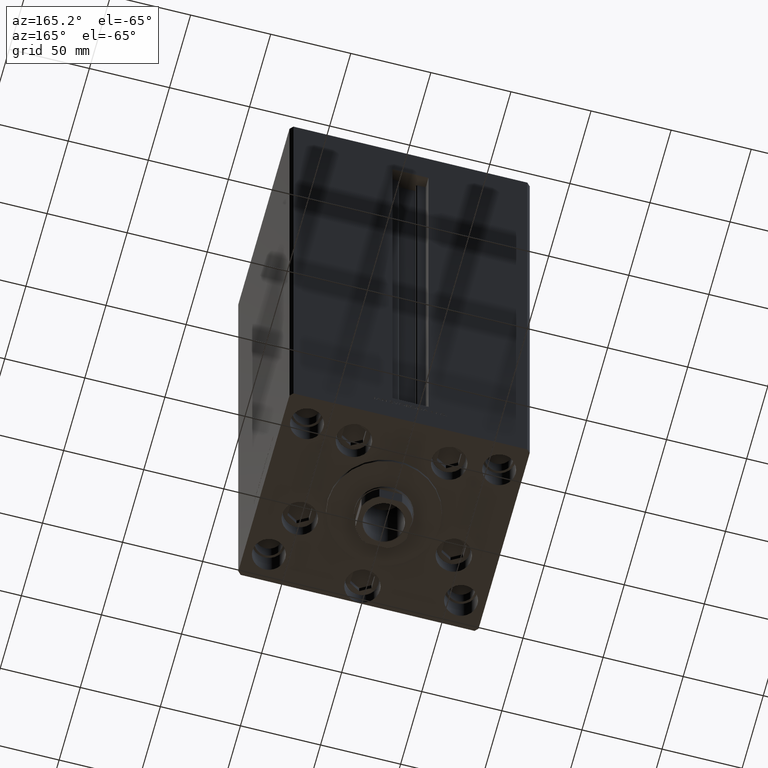
[diagram: clean part render]
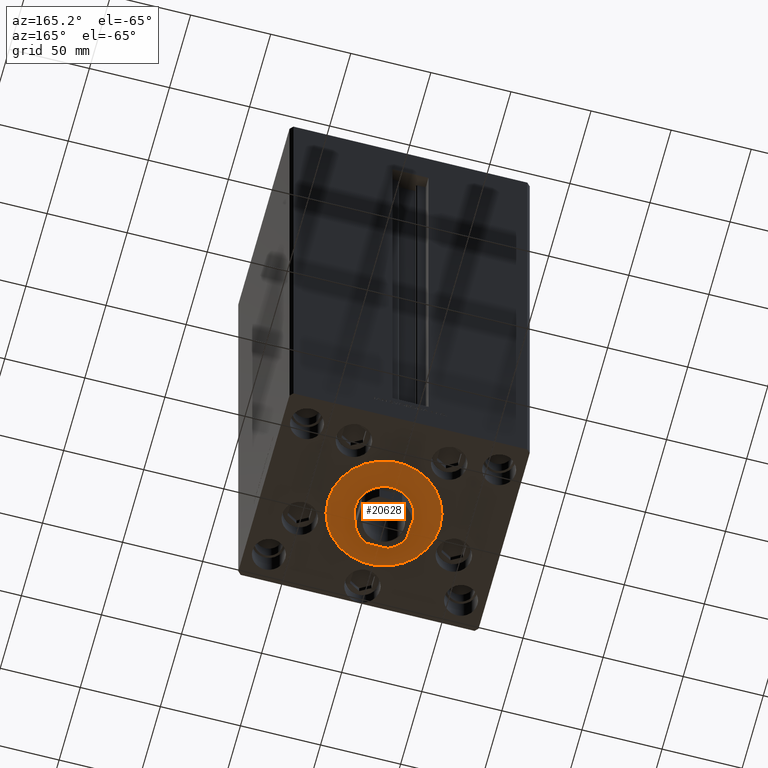
[diagram: same view with one face highlighted and labeled with its STEP entity id]
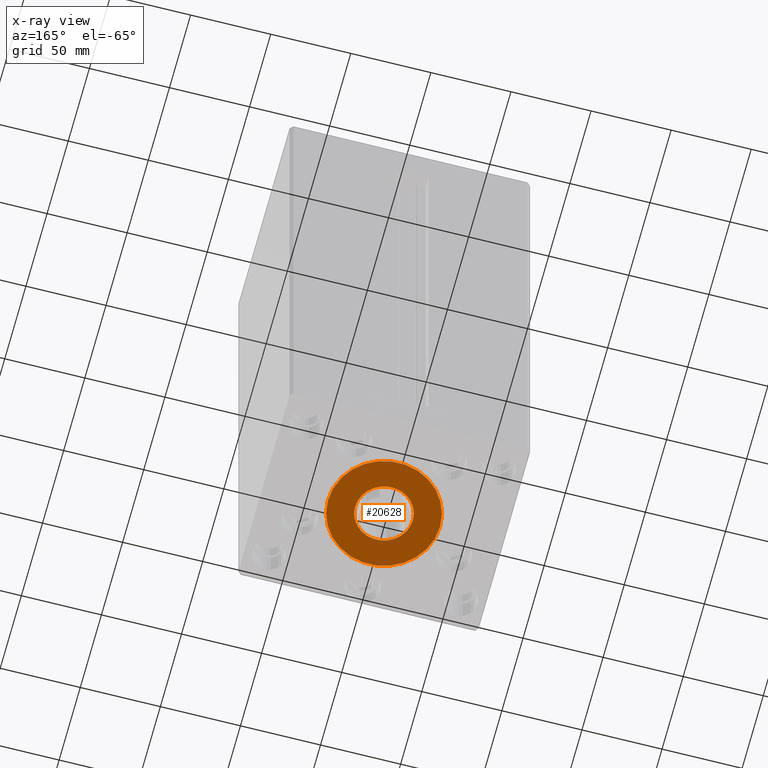
[diagram: x-ray of the same camera — body ghosted, the highlighted face saturated]
A machine part, auxiliary view. The second image highlights one B-rep face of the part: STEP entity #20628.
The next image is the same camera in x-ray: the body ghosted, the highlighted face saturated — about 0% of this face is hidden behind the body in this view.
In plain terms, the highlighted planar face has unit normal (0, 0, -1).
Its self-contained STEP definition (entity closure, byte-faithful):
#892 = DIRECTION ( 'NONE',  ( 1.000000000000000000, 0.000000000000000000, 0.000000000000000000 ) ) ;
#1050 = FACE_OUTER_BOUND ( 'NONE', #23318, .T. ) ;
#3868 = DIRECTION ( 'NONE',  ( 0.000000000000000000, 0.000000000000000000, 1.000000000000000000 ) ) ;
#4457 = DIRECTION ( 'NONE',  ( 0.000000000000000000, 0.000000000000000000, 1.000000000000000000 ) ) ;
#5947 = DIRECTION ( 'NONE',  ( 0.000000000000000000, 0.000000000000000000, 1.000000000000000000 ) ) ;
#6570 = VERTEX_POINT ( 'NONE', #34534 ) ;
#8428 = CARTESIAN_POINT ( 'NONE',  ( 0.000000000000000000, -6.938893903907228378E-15, 2.000000000000000000 ) ) ;
#8913 = DIRECTION ( 'NONE',  ( 1.000000000000000000, 0.000000000000000000, 0.000000000000000000 ) ) ;
#8971 = DIRECTION ( 'NONE',  ( 0.000000000000000000, 0.000000000000000000, 1.000000000000000000 ) ) ;
#9105 = EDGE_CURVE ( 'NONE', #6570, #33917, #36404, .T. ) ;
#10519 = EDGE_CURVE ( 'NONE', #33917, #6570, #30892, .T. ) ;
#10692 = ORIENTED_EDGE ( 'NONE', *, *, #15259, .F. ) ;
#12687 = FACE_BOUND ( 'NONE', #16445, .T. ) ;
#14269 = AXIS2_PLACEMENT_3D ( 'NONE', #34815, #3868, #892 ) ;
#14446 = CARTESIAN_POINT ( 'NONE',  ( 35.00000000000000711, -2.652630106891490698E-15, 2.000000000000000000 ) ) ;
#15259 = EDGE_CURVE ( 'NONE', #38137, #31589, #24584, .T. ) ;
#15803 = EDGE_CURVE ( 'NONE', #31589, #38137, #42736, .T. ) ;
#16445 = EDGE_LOOP ( 'NONE', ( #23503, #10692 ) ) ;
#19556 = DIRECTION ( 'NONE',  ( 0.000000000000000000, 0.000000000000000000, 1.000000000000000000 ) ) ;
#20628 = ADVANCED_FACE ( 'NONE', ( #12687, #1050 ), #27790, .T. ) ;
#21397 = AXIS2_PLACEMENT_3D ( 'NONE', #23762, #4457, #8913 ) ;
#23276 = DIRECTION ( 'NONE',  ( 1.000000000000000000, 0.000000000000000000, 0.000000000000000000 ) ) ;
#23318 = EDGE_LOOP ( 'NONE', ( #32825, #31174 ) ) ;
#23503 = ORIENTED_EDGE ( 'NONE', *, *, #15803, .F. ) ;
#23762 = CARTESIAN_POINT ( 'NONE',  ( 0.000000000000000000, -6.938893903907228378E-15, 2.000000000000000000 ) ) ;
#24584 = CIRCLE ( 'NONE', #38818, 18.00000000000000000 ) ;
#24694 = CARTESIAN_POINT ( 'NONE',  ( 18.00000000000000000, -6.938893903907228378E-15, 2.000000000000000000 ) ) ;
#25014 = DIRECTION ( 'NONE',  ( 1.000000000000000000, 0.000000000000000000, 0.000000000000000000 ) ) ;
#27790 = PLANE ( 'NONE',  #35817 ) ;
#30892 = CIRCLE ( 'NONE', #14269, 35.00000000000000711 ) ;
#31174 = ORIENTED_EDGE ( 'NONE', *, *, #10519, .T. ) ;
#31589 = VERTEX_POINT ( 'NONE', #24694 ) ;
#32444 = AXIS2_PLACEMENT_3D ( 'NONE', #8428, #19556, #23276 ) ;
#32825 = ORIENTED_EDGE ( 'NONE', *, *, #9105, .T. ) ;
#33917 = VERTEX_POINT ( 'NONE', #14446 ) ;
#34534 = CARTESIAN_POINT ( 'NONE',  ( -35.00000000000000711, -6.938893903907228378E-15, 2.000000000000000000 ) ) ;
#34815 = CARTESIAN_POINT ( 'NONE',  ( 0.000000000000000000, -6.938893903907228378E-15, 2.000000000000000000 ) ) ;
#35817 = AXIS2_PLACEMENT_3D ( 'NONE', #42880, #8971, #39169 ) ;
#36314 = CARTESIAN_POINT ( 'NONE',  ( -18.00000000000000000, -4.734529665441992555E-15, 2.000000000000000000 ) ) ;
#36404 = CIRCLE ( 'NONE', #32444, 35.00000000000000711 ) ;
#36641 = CARTESIAN_POINT ( 'NONE',  ( 0.000000000000000000, -6.938893903907228378E-15, 2.000000000000000000 ) ) ;
#38137 = VERTEX_POINT ( 'NONE', #36314 ) ;
#38818 = AXIS2_PLACEMENT_3D ( 'NONE', #36641, #5947, #25014 ) ;
#39169 = DIRECTION ( 'NONE',  ( 1.000000000000000000, 0.000000000000000000, -0.000000000000000000 ) ) ;
#42736 = CIRCLE ( 'NONE', #21397, 18.00000000000000000 ) ;
#42880 = CARTESIAN_POINT ( 'NONE',  ( 0.000000000000000000, -6.938893903907228378E-15, 2.000000000000000000 ) ) ;